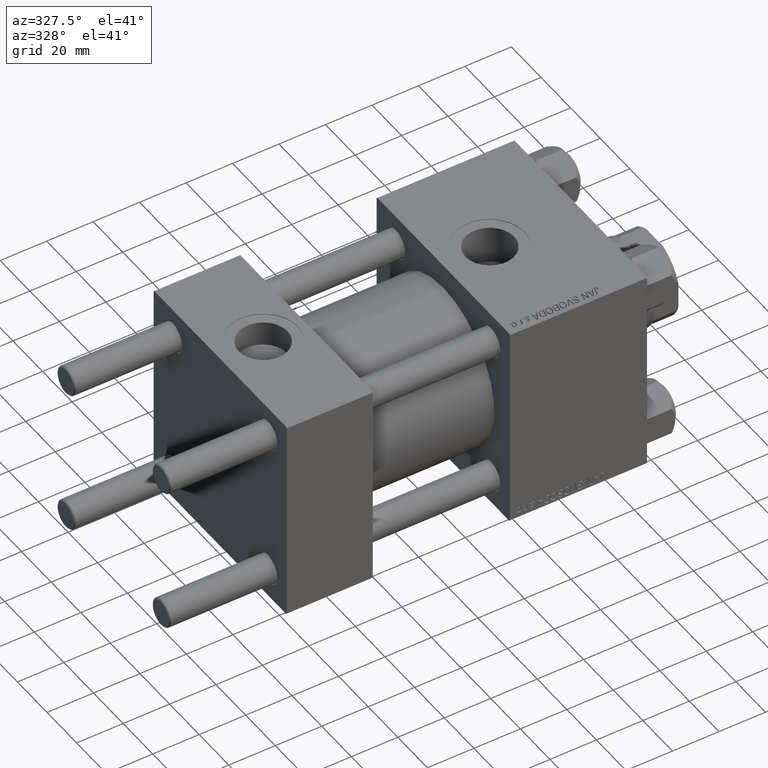
[diagram: clean part render]
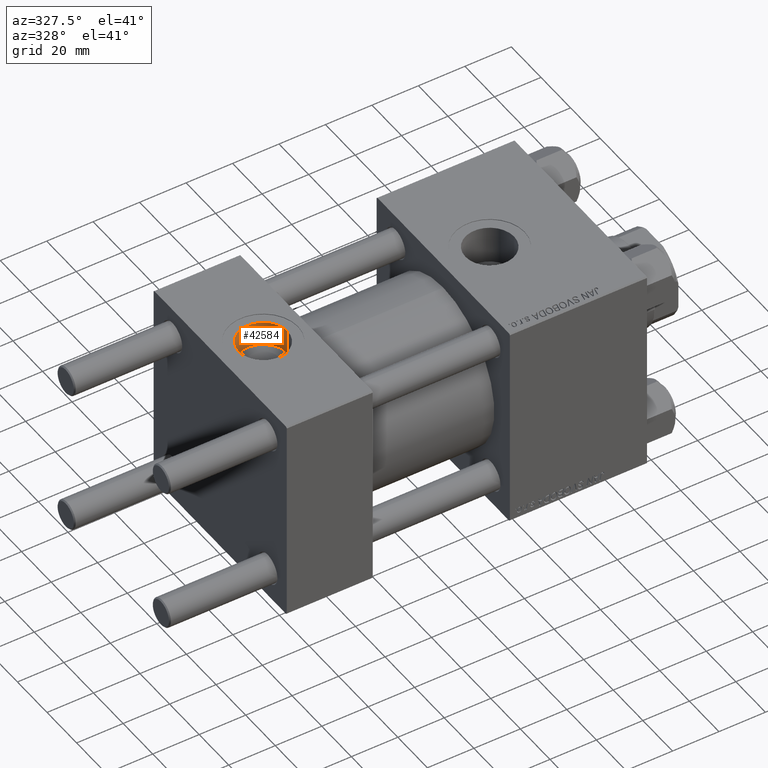
[diagram: same view with one face highlighted and labeled with its STEP entity id]
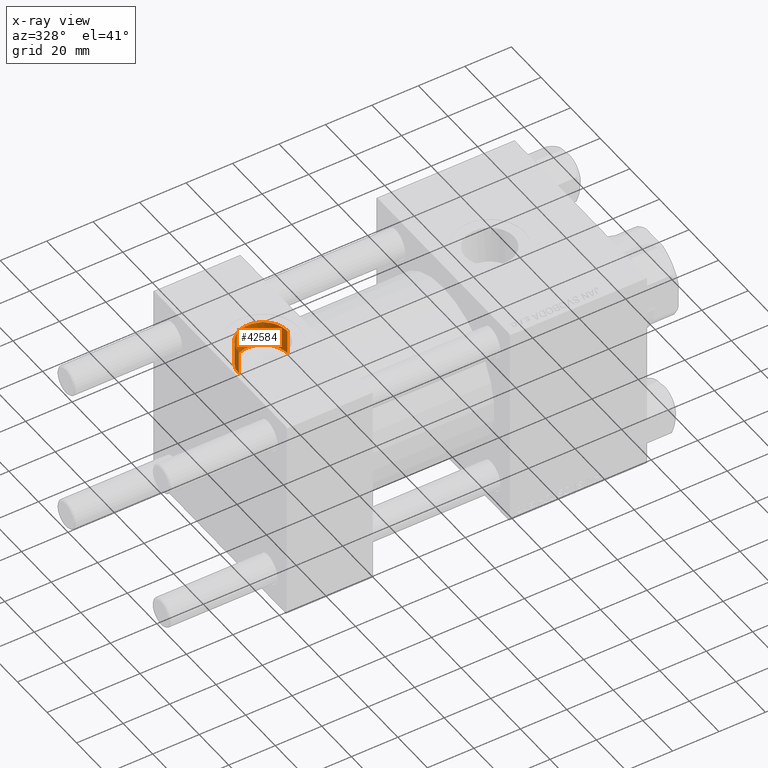
[diagram: x-ray of the same camera — body ghosted, the highlighted face saturated]
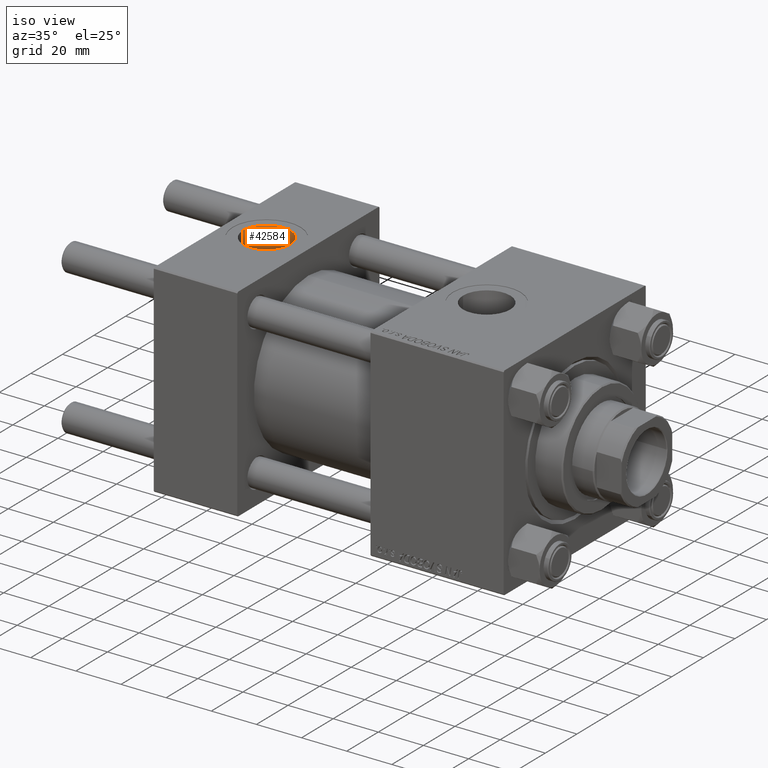
[diagram: same view with one face highlighted and labeled with its STEP entity id]
A machine part, auxiliary view. The second image highlights one B-rep face of the part: STEP entity #42584.
The next image is the same camera in x-ray: the body ghosted, the highlighted face saturated — about 0% of this face is hidden behind the body in this view.
A second angle (iso view) of the same face is appended — the face is thin or edge-on in the first view.
In plain terms, the highlighted cylindrical surface (edge-blend (fillet) strip) has radius 10.48 mm, axis along (0, 0, 1).
Its self-contained STEP definition (entity closure, byte-faithful):
#368 = EDGE_CURVE ( 'NONE', #31726, #25055, #22045, .T. ) ;
#1162 = VECTOR ( 'NONE', #33857, 1000.000000000000000 ) ;
#1690 = AXIS2_PLACEMENT_3D ( 'NONE', #22083, #34144, #34401 ) ;
#2170 = AXIS2_PLACEMENT_3D ( 'NONE', #7185, #37148, #48981 ) ;
#4029 = LINE ( 'NONE', #18873, #36008 ) ;
#4529 = AXIS2_PLACEMENT_3D ( 'NONE', #47411, #28729, #24246 ) ;
#5399 = EDGE_CURVE ( 'NONE', #31726, #32461, #35855, .T. ) ;
#7185 = CARTESIAN_POINT ( 'NONE',  ( 18.50000000000000000, -8.673617379884038628E-15, 44.80000000000000426 ) ) ;
#7438 = VERTEX_POINT ( 'NONE', #46751 ) ;
#7587 = EDGE_CURVE ( 'NONE', #25055, #7438, #24667, .T. ) ;
#10514 = FACE_OUTER_BOUND ( 'NONE', #32762, .T. ) ;
#17055 = ORIENTED_EDGE ( 'NONE', *, *, #368, .T. ) ;
#18803 = CYLINDRICAL_SURFACE ( 'NONE', #1690, 10.48000000000000043 ) ;
#18873 = CARTESIAN_POINT ( 'NONE',  ( 8.019999999999999574, -7.390187534377611561E-15, 34.20000000000000995 ) ) ;
#22045 = LINE ( 'NONE', #36902, #1162 ) ;
#22083 = CARTESIAN_POINT ( 'NONE',  ( 18.50000000000000000, -8.673617379884038628E-15, 34.20000000000000995 ) ) ;
#22321 = CARTESIAN_POINT ( 'NONE',  ( 8.019999999999999574, -7.390187534377611561E-15, 34.20000000000000995 ) ) ;
#22913 = CARTESIAN_POINT ( 'NONE',  ( 28.98000000000000043, -8.673617379884038628E-15, 34.20000000000000995 ) ) ;
#23432 = CARTESIAN_POINT ( 'NONE',  ( 28.98000000000000043, -8.673617379884038628E-15, 44.80000000000000426 ) ) ;
#24246 = DIRECTION ( 'NONE',  ( 1.000000000000000000, 0.000000000000000000, 0.000000000000000000 ) ) ;
#24667 = CIRCLE ( 'NONE', #2170, 10.48000000000000043 ) ;
#25055 = VERTEX_POINT ( 'NONE', #23432 ) ;
#28729 = DIRECTION ( 'NONE',  ( 0.000000000000000000, 0.000000000000000000, 1.000000000000000000 ) ) ;
#29648 = ORIENTED_EDGE ( 'NONE', *, *, #30724, .F. ) ;
#30724 = EDGE_CURVE ( 'NONE', #32461, #7438, #4029, .T. ) ;
#31726 = VERTEX_POINT ( 'NONE', #22913 ) ;
#32461 = VERTEX_POINT ( 'NONE', #22321 ) ;
#32762 = EDGE_LOOP ( 'NONE', ( #29648, #36799, #17055, #33263 ) ) ;
#33263 = ORIENTED_EDGE ( 'NONE', *, *, #7587, .T. ) ;
#33857 = DIRECTION ( 'NONE',  ( -0.000000000000000000, -0.000000000000000000, 1.000000000000000000 ) ) ;
#34144 = DIRECTION ( 'NONE',  ( -0.000000000000000000, -0.000000000000000000, 1.000000000000000000 ) ) ;
#34401 = DIRECTION ( 'NONE',  ( 1.000000000000000000, 0.000000000000000000, 0.000000000000000000 ) ) ;
#34473 = DIRECTION ( 'NONE',  ( -0.000000000000000000, -0.000000000000000000, 1.000000000000000000 ) ) ;
#35855 = CIRCLE ( 'NONE', #4529, 10.48000000000000043 ) ;
#36008 = VECTOR ( 'NONE', #34473, 1000.000000000000000 ) ;
#36799 = ORIENTED_EDGE ( 'NONE', *, *, #5399, .F. ) ;
#36902 = CARTESIAN_POINT ( 'NONE',  ( 28.98000000000000043, -8.673617379884038628E-15, 34.20000000000000995 ) ) ;
#37148 = DIRECTION ( 'NONE',  ( 0.000000000000000000, 0.000000000000000000, 1.000000000000000000 ) ) ;
#42584 = ADVANCED_FACE ( 'NONE', ( #10514 ), #18803, .F. ) ;
#46751 = CARTESIAN_POINT ( 'NONE',  ( 8.019999999999999574, -7.390187534377611561E-15, 44.80000000000000426 ) ) ;
#47411 = CARTESIAN_POINT ( 'NONE',  ( 18.50000000000000000, -8.673617379884038628E-15, 34.20000000000000995 ) ) ;
#48981 = DIRECTION ( 'NONE',  ( 1.000000000000000000, 0.000000000000000000, 0.000000000000000000 ) ) ;